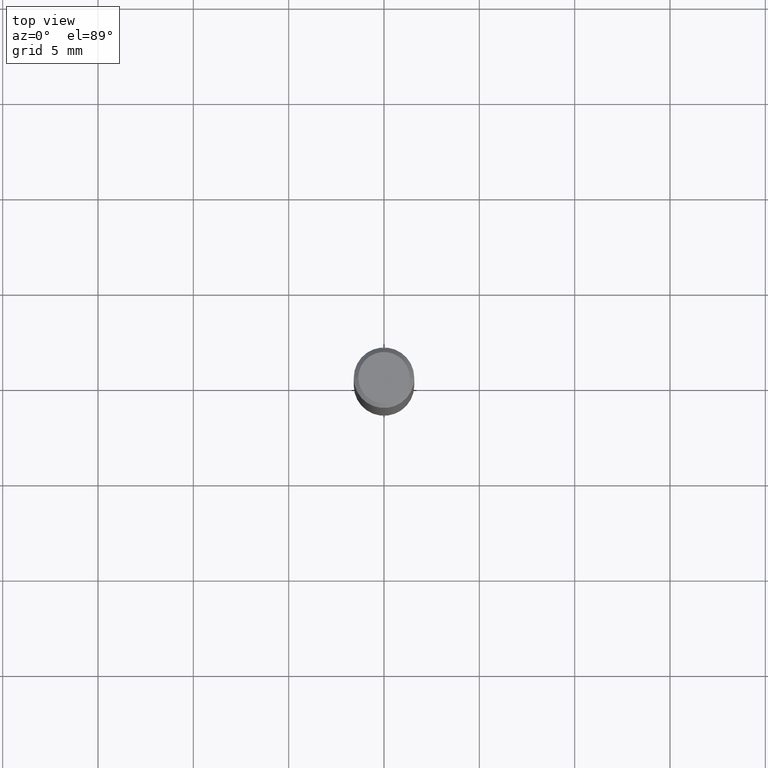
[diagram: clean part render]
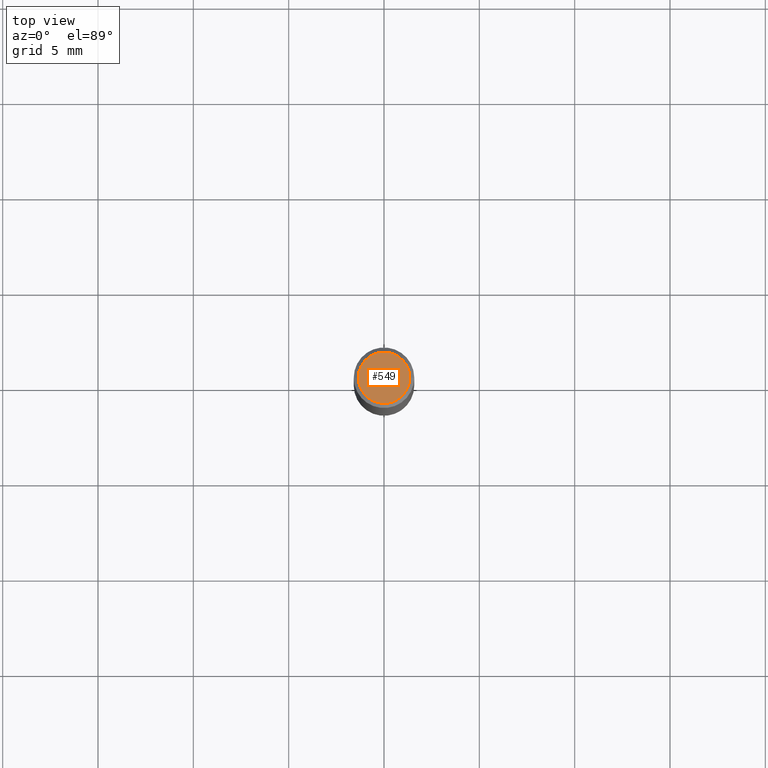
[diagram: same view with one face highlighted and labeled with its STEP entity id]
A machine part, top view. The second image highlights one B-rep face of the part: STEP entity #549.
In plain terms, the highlighted planar face has unit normal (0, -0, -1).
Its self-contained STEP definition (entity closure, byte-faithful):
#16 = CARTESIAN_POINT ( 'NONE',  ( 1.415359278996747967E-46, -2.020757941330909984E-32, -5.787680772770392401E-18 ) ) ;
#47 = CARTESIAN_POINT ( 'NONE',  ( 7.076796394983739835E-47, -1.010378970665454992E-32, -2.893840386385196200E-18 ) ) ;
#58 = AXIS2_PLACEMENT_3D ( 'NONE', #47, #365, #233 ) ;
#113 = VERTEX_POINT ( 'NONE', #328 ) ;
#154 = EDGE_CURVE ( 'NONE', #537, #113, #187, .T. ) ;
#187 = CIRCLE ( 'NONE', #266, 0.05312499999999999861 ) ;
#199 = AXIS2_PLACEMENT_3D ( 'NONE', #16, #381, #201 ) ;
#201 = DIRECTION ( 'NONE',  ( 1.000000000000000000, -6.982962677686266711E-15, 4.875930095424100059E-29 ) ) ;
#228 = CARTESIAN_POINT ( 'NONE',  ( 0.05312499999999999861, -4.129888592719939842E-16, -5.787680772767651417E-18 ) ) ;
#233 = DIRECTION ( 'NONE',  ( -1.000000000000000000, 6.982962677686265922E-15, -4.876176775795935793E-29 ) ) ;
#266 = AXIS2_PLACEMENT_3D ( 'NONE', #510, #332, #294 ) ;
#289 = EDGE_CURVE ( 'NONE', #113, #537, #432, .T. ) ;
#294 = DIRECTION ( 'NONE',  ( 1.000000000000000000, -6.982962677686266711E-15, 4.875930095424100059E-29 ) ) ;
#328 = CARTESIAN_POINT ( 'NONE',  ( -0.05312499999999999861, 3.873362110279099094E-16, -5.787680772773044021E-18 ) ) ;
#332 = DIRECTION ( 'NONE',  ( -2.445468806185136597E-29, 3.491481338843145583E-15, 1.000000000000000000 ) ) ;
#365 = DIRECTION ( 'NONE',  ( 2.438088387897960049E-29, -3.491481338843145188E-15, -1.000000000000000000 ) ) ;
#381 = DIRECTION ( 'NONE',  ( -2.445468806185136597E-29, 3.491481338843145583E-15, 1.000000000000000000 ) ) ;
#405 = ORIENTED_EDGE ( 'NONE', *, *, #154, .T. ) ;
#416 = FACE_OUTER_BOUND ( 'NONE', #479, .T. ) ;
#432 = CIRCLE ( 'NONE', #199, 0.05312499999999999861 ) ;
#450 = ORIENTED_EDGE ( 'NONE', *, *, #289, .T. ) ;
#479 = EDGE_LOOP ( 'NONE', ( #450, #405 ) ) ;
#510 = CARTESIAN_POINT ( 'NONE',  ( 1.415359278996747967E-46, -2.020757941330909984E-32, -5.787680772770392401E-18 ) ) ;
#537 = VERTEX_POINT ( 'NONE', #228 ) ;
#549 = ADVANCED_FACE ( 'NONE', ( #416 ), #586, .F. ) ;
#586 = PLANE ( 'NONE',  #58 ) ;